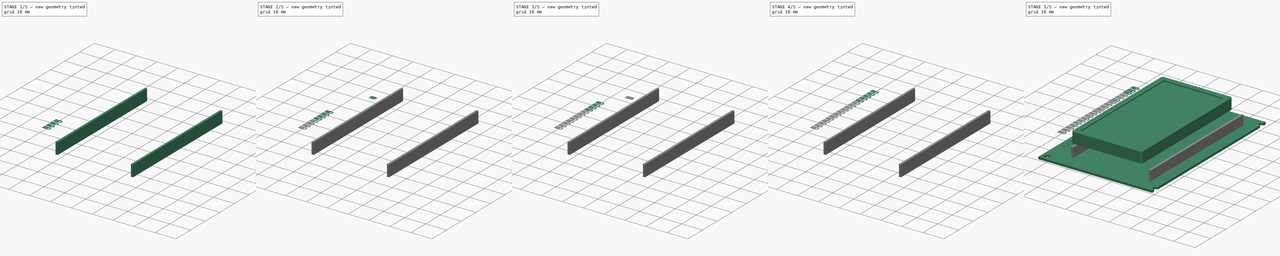
[diagram: build sequence overview — one tinted view per stage of 5, left to right]
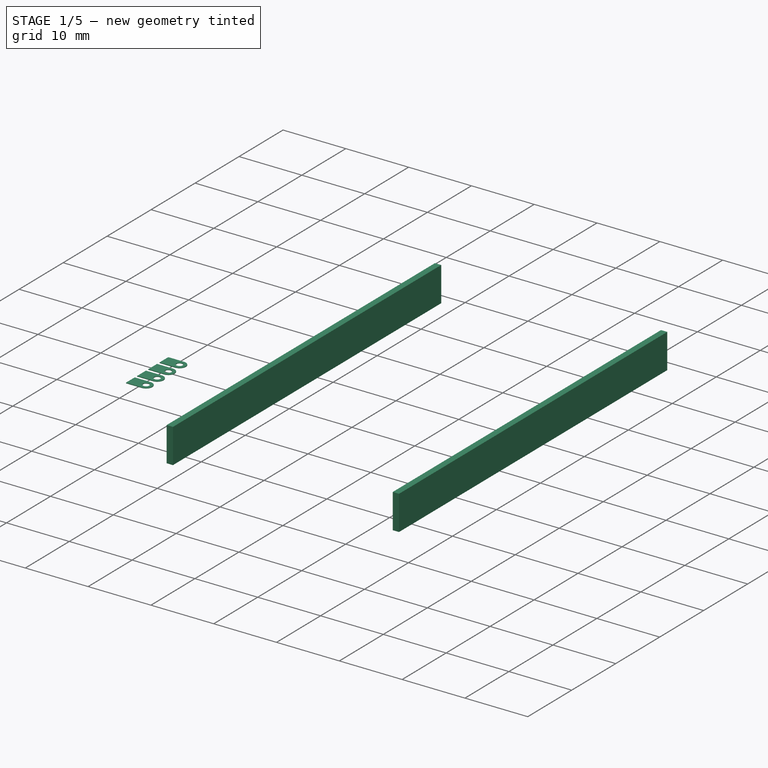
[diagram: stage 1 of 5 — iso view after this stage's code; geometry added in this stage tinted green]
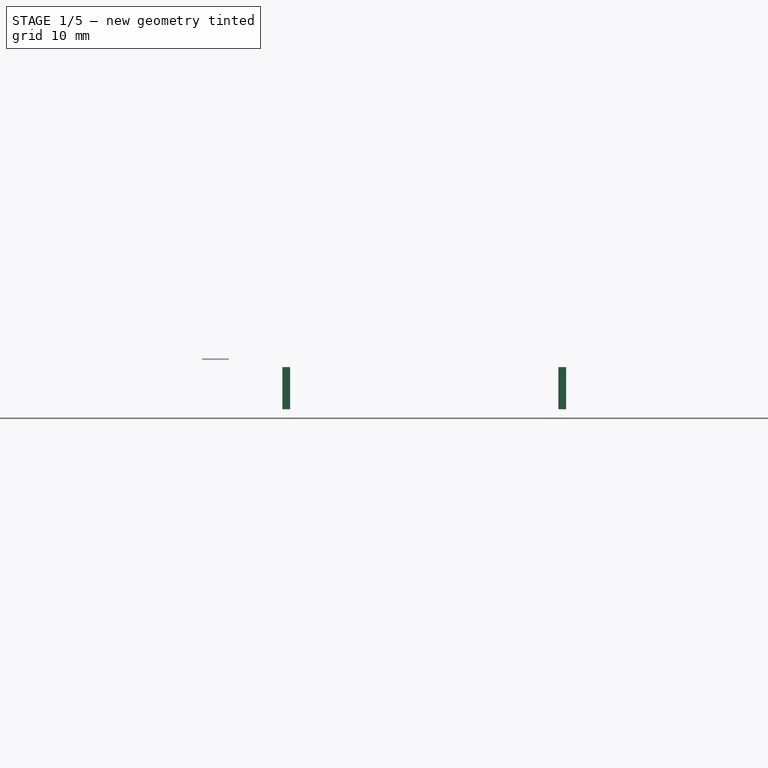
[diagram: stage 1 of 5 — front view after this stage's code; geometry added in this stage tinted green]
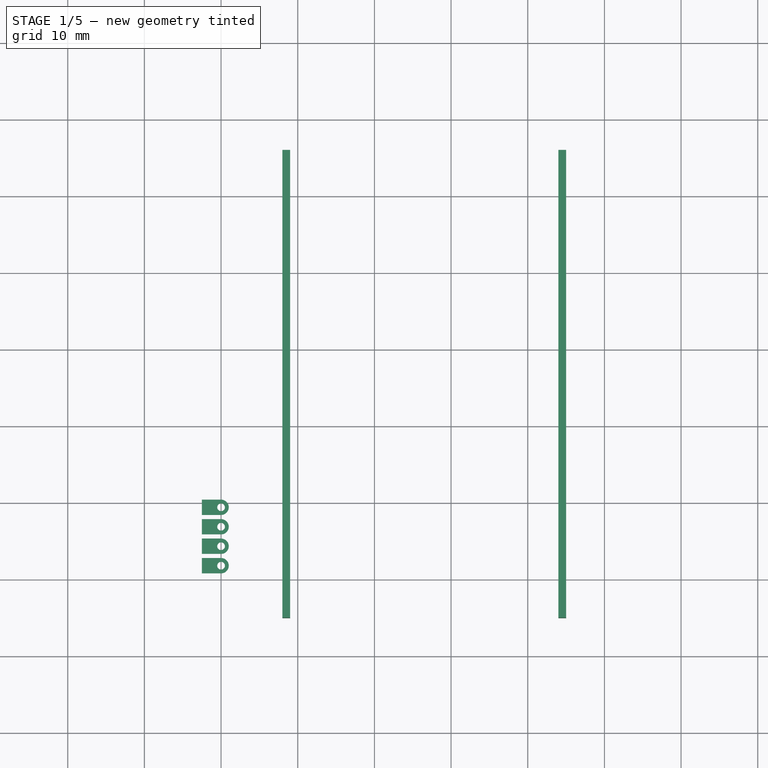
[diagram: stage 1 of 5 — top view after this stage's code; geometry added in this stage tinted green]
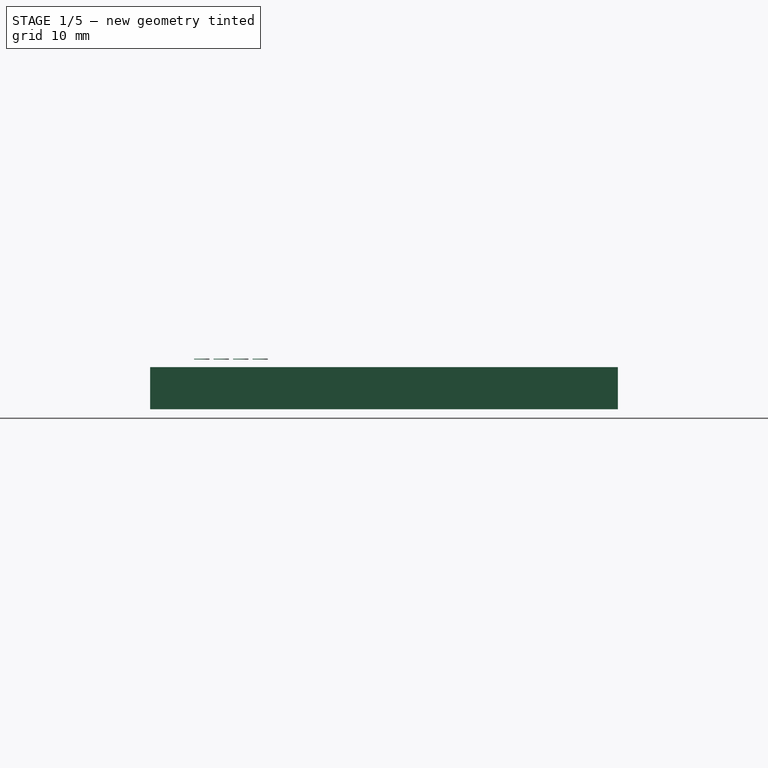
[diagram: stage 1 of 5 — right view after this stage's code; geometry added in this stage tinted green]
FCSTD DOCUMENT  (FreeCAD 0.17R11223 (Git))
Label: AG12864E_6
License: All rights reserved
LicenseURL: http://en.wikipedia.org/wiki/All_rights_reserved
objects: Part::Cylinder×60, Part::Cut×41, Part::Box×25, Part::Fuse×20, Part::Fillet×4, Sketcher::SketchObject×1, PartDesign::Pad×1, PartDesign::Body×1
note: 154 computed .brp shape members not serialized (recipe doc carries the construction recipe); baked Part::Feature solids carry a one-line shape summary decoded from their .brp

FEATURE [Part::Cylinder] Cylinder048
  Angle = 360
  AttacherType = Attacher::AttachEngine3D
  Height = 0.1
  Placement = pos=(0,0,1) rot=(0,0,1;0rad)
  Radius = 1
FEATURE [Part::Cylinder] Cylinder049
  Angle = 360
  AttacherType = Attacher::AttachEngine3D
  Height = 0.1
  Placement = pos=(0,0,1) rot=(0,0,1;0rad)
  Radius = 0.5
FEATURE [Part::Cut] Cut033
  Base = -> Cylinder048
  Tool = -> Cylinder049
FEATURE [Part::Box] Box019  label="Kub016"
  AttacherType = Attacher::AttachEngine3D
  Height = 0.1
  Length = 2.54
  Placement = pos=(-2.5,-1,1) rot=(0,0,1;0rad)
  Width = 2
FEATURE [Part::Cylinder] Cylinder050
  Angle = 360
  AttacherType = Attacher::AttachEngine3D
  Height = 0.1
  Placement = pos=(0,0,1) rot=(0,0,1;0rad)
  Radius = 0.5
FEATURE [Part::Cut] Cut034
  Base = -> Box019
  Tool = -> Cylinder050
FEATURE [Part::Fuse] Fusion016  label="Pad 017"
  Base = -> Cut033
  Placement = pos=(0,-40.64,5.5) rot=(0,0,1;0rad)
  Tool = -> Cut034
FEATURE [Part::Cylinder] Cylinder051
  Angle = 360
  AttacherType = Attacher::AttachEngine3D
  Height = 0.1
  Placement = pos=(0,0,1) rot=(0,0,1;0rad)
  Radius = 1
FEATURE [Part::Cylinder] Cylinder052
  Angle = 360
  AttacherType = Attacher::AttachEngine3D
  Height = 0.1
  Placement = pos=(0,0,1) rot=(0,0,1;0rad)
  Radius = 0.5
FEATURE [Part::Cut] Cut035
  Base = -> Cylinder051
  Tool = -> Cylinder052
FEATURE [Part::Box] Box020  label="Kub017"
  AttacherType = Attacher::AttachEngine3D
  Height = 0.1
  Length = 2.54
  Placement = pos=(-2.5,-1,1) rot=(0,0,1;0rad)
  Width = 2
FEATURE [Part::Cylinder] Cylinder053
  Angle = 360
  AttacherType = Attacher::AttachEngine3D
  Height = 0.1
  Placement = pos=(0,0,1) rot=(0,0,1;0rad)
  Radius = 0.5
FEATURE [Part::Cut] Cut036
  Base = -> Box020
  Tool = -> Cylinder053
FEATURE [Part::Fuse] Fusion017  label="Pad 018"
  Base = -> Cut035
  Placement = pos=(0,-43.18,5.5) rot=(0,0,1;0rad)
  Tool = -> Cut036
FEATURE [Part::Cylinder] Cylinder054
  Angle = 360
  AttacherType = Attacher::AttachEngine3D
  Height = 0.1
  Placement = pos=(0,0,1) rot=(0,0,1;0rad)
  Radius = 1
FEATURE [Part::Cylinder] Cylinder055
  Angle = 360
  AttacherType = Attacher::AttachEngine3D
  Height = 0.1
  Placement = pos=(0,0,1) rot=(0,0,1;0rad)
  Radius = 0.5
FEATURE [Part::Cut] Cut037
  Base = -> Cylinder054
  Tool = -> Cylinder055
FEATURE [Part::Box] Box021  label="Kub018"
  AttacherType = Attacher::AttachEngine3D
  Height = 0.1
  Length = 2.54
  Placement = pos=(-2.5,-1,1) rot=(0,0,1;0rad)
  Width = 2
FEATURE [Part::Cylinder] Cylinder056
  Angle = 360
  AttacherType = Attacher::AttachEngine3D
  Height = 0.1
  Placement = pos=(0,0,1) rot=(0,0,1;0rad)
  Radius = 0.5
FEATURE [Part::Cut] Cut038
  Base = -> Box021
  Tool = -> Cylinder056
FEATURE [Part::Fuse] Fusion018  label="Pad 019"
  Base = -> Cut037
  Placement = pos=(0,-45.72,5.5) rot=(0,0,1;0rad)
  Tool = -> Cut038
FEATURE [Part::Cylinder] Cylinder057
  Angle = 360
  AttacherType = Attacher::AttachEngine3D
  Height = 0.1
  Placement = pos=(0,0,1) rot=(0,0,1;0rad)
  Radius = 1
FEATURE [Part::Cylinder] Cylinder058
  Angle = 360
  AttacherType = Attacher::AttachEngine3D
  Height = 0.1
  Placement = pos=(0,0,1) rot=(0,0,1;0rad)
  Radius = 0.5
FEATURE [Part::Cut] Cut039
  Base = -> Cylinder057
  Tool = -> Cylinder058
FEATURE [Part::Box] Box022  label="Kub019"
  AttacherType = Attacher::AttachEngine3D
  Height = 0.1
  Length = 2.54
  Placement = pos=(-2.5,-1,1) rot=(0,0,1;0rad)
  Width = 2
FEATURE [Part::Cylinder] Cylinder059
  Angle = 360
  AttacherType = Attacher::AttachEngine3D
  Height = 0.1
  Placement = pos=(0,0,1) rot=(0,0,1;0rad)
  Radius = 0.5
FEATURE [Part::Cut] Cut040
  Base = -> Box022
  Tool = -> Cylinder059
FEATURE [Part::Fuse] Fusion019  label="Pad 020"
  Base = -> Cut039
  Placement = pos=(0,-48.26,5.5) rot=(0,0,1;0rad)
  Tool = -> Cut040
FEATURE [Part::Box] Box023  label="Glider 001"
  AttacherType = Attacher::AttachEngine3D
  Height = 5.5
  Length = 1
  Placement = pos=(8,-55,0) rot=(0,0,1;0rad)
  Width = 61
FEATURE [Part::Box] Box024  label="Glider 002"
  AttacherType = Attacher::AttachEngine3D
  Height = 5.5
  Length = 1
  Placement = pos=(44,-55,0) rot=(0,0,1;0rad)
  Width = 61
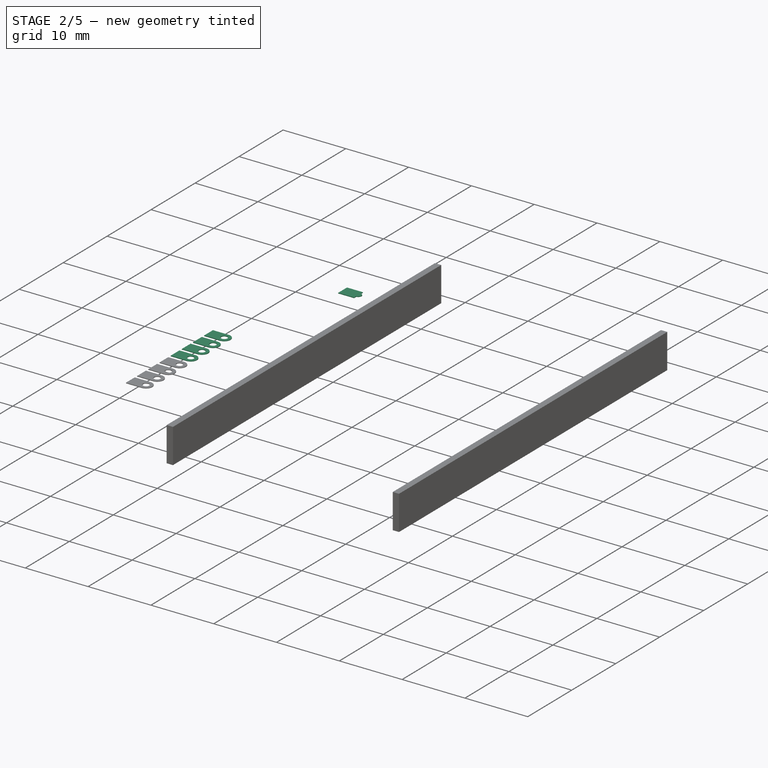
[diagram: stage 2 of 5 — iso view after this stage's code; geometry added in this stage tinted green]
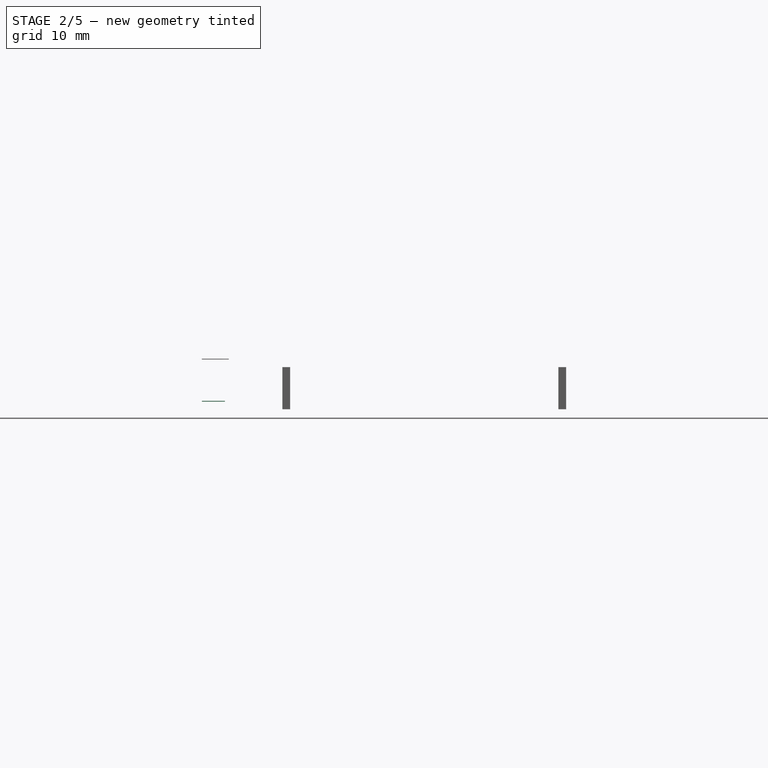
[diagram: stage 2 of 5 — front view after this stage's code; geometry added in this stage tinted green]
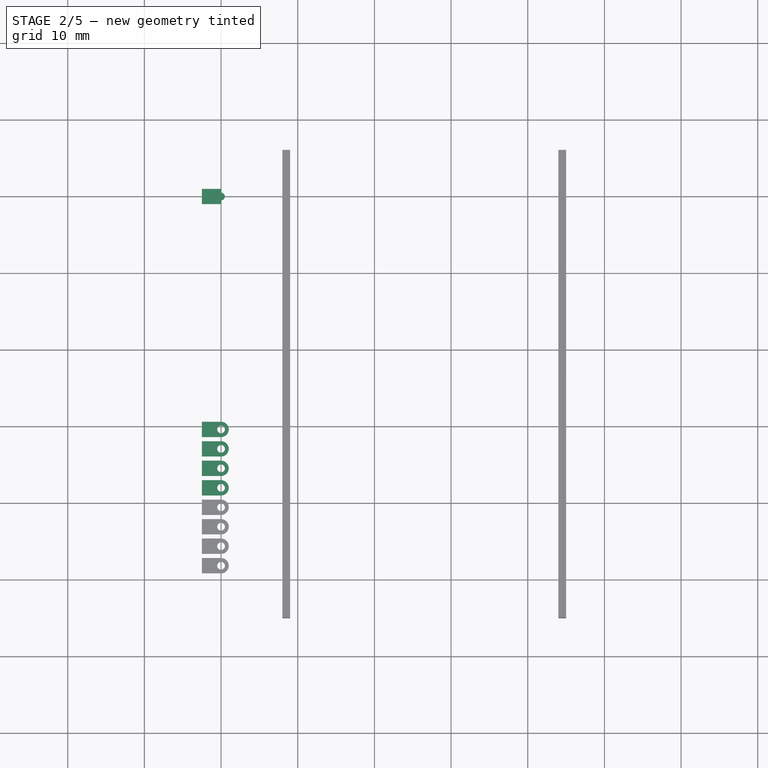
[diagram: stage 2 of 5 — top view after this stage's code; geometry added in this stage tinted green]
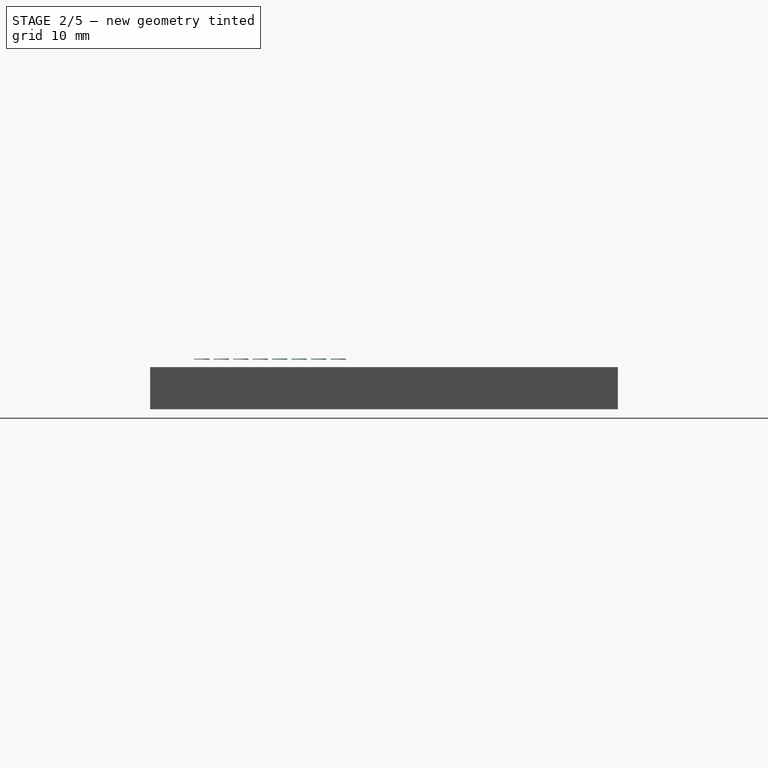
[diagram: stage 2 of 5 — right view after this stage's code; geometry added in this stage tinted green]
FEATURE [Part::Box] Box014  label="Kub011"
  AttacherType = Attacher::AttachEngine3D
  Height = 0.1
  Length = 2.54
  Placement = pos=(-2.5,-1,1) rot=(0,0,1;0rad)
  Width = 2
FEATURE [Part::Cylinder] Cylinder035
  Angle = 360
  AttacherType = Attacher::AttachEngine3D
  Height = 0.1
  Placement = pos=(0,0,1) rot=(0,0,1;0rad)
  Radius = 0.5
FEATURE [Part::Cylinder] Cylinder036
  Angle = 360
  AttacherType = Attacher::AttachEngine3D
  Height = 0.1
  Placement = pos=(0,0,1) rot=(0,0,1;0rad)
  Radius = 1
FEATURE [Part::Cylinder] Cylinder037
  Angle = 360
  AttacherType = Attacher::AttachEngine3D
  Height = 0.1
  Placement = pos=(0,0,1) rot=(0,0,1;0rad)
  Radius = 0.5
FEATURE [Part::Cut] Cut025
  Base = -> Cylinder036
  Tool = -> Cylinder037
FEATURE [Part::Box] Box015  label="Kub012"
  AttacherType = Attacher::AttachEngine3D
  Height = 0.1
  Length = 2.54
  Placement = pos=(-2.5,-1,1) rot=(0,0,1;0rad)
  Width = 2
FEATURE [Part::Cylinder] Cylinder038
  Angle = 360
  AttacherType = Attacher::AttachEngine3D
  Height = 0.1
  Placement = pos=(0,0,1) rot=(0,0,1;0rad)
  Radius = 0.5
FEATURE [Part::Cut] Cut026
  Base = -> Box015
  Tool = -> Cylinder038
FEATURE [Part::Fuse] Fusion012  label="Pad 013"
  Base = -> Cut025
  Placement = pos=(0,-30.48,5.5) rot=(0,0,1;0rad)
  Tool = -> Cut026
FEATURE [Part::Cylinder] Cylinder039
  Angle = 360
  AttacherType = Attacher::AttachEngine3D
  Height = 0.1
  Placement = pos=(0,0,1) rot=(0,0,1;0rad)
  Radius = 1
FEATURE [Part::Cylinder] Cylinder040
  Angle = 360
  AttacherType = Attacher::AttachEngine3D
  Height = 0.1
  Placement = pos=(0,0,1) rot=(0,0,1;0rad)
  Radius = 0.5
FEATURE [Part::Cut] Cut027
  Base = -> Cylinder039
  Tool = -> Cylinder040
FEATURE [Part::Box] Box016  label="Kub013"
  AttacherType = Attacher::AttachEngine3D
  Height = 0.1
  Length = 2.54
  Placement = pos=(-2.5,-1,1) rot=(0,0,1;0rad)
  Width = 2
FEATURE [Part::Cylinder] Cylinder041
  Angle = 360
  AttacherType = Attacher::AttachEngine3D
  Height = 0.1
  Placement = pos=(0,0,1) rot=(0,0,1;0rad)
  Radius = 0.5
FEATURE [Part::Cut] Cut028
  Base = -> Box016
  Tool = -> Cylinder041
FEATURE [Part::Fuse] Fusion013  label="Pad 014"
  Base = -> Cut027
  Placement = pos=(0,-33.02,5.5) rot=(0,0,1;0rad)
  Tool = -> Cut028
FEATURE [Part::Cylinder] Cylinder042
  Angle = 360
  AttacherType = Attacher::AttachEngine3D
  Height = 0.1
  Placement = pos=(0,0,1) rot=(0,0,1;0rad)
  Radius = 1
FEATURE [Part::Cylinder] Cylinder043
  Angle = 360
  AttacherType = Attacher::AttachEngine3D
  Height = 0.1
  Placement = pos=(0,0,1) rot=(0,0,1;0rad)
  Radius = 0.5
FEATURE [Part::Cut] Cut029
  Base = -> Cylinder042
  Tool = -> Cylinder043
FEATURE [Part::Box] Box017  label="Kub014"
  AttacherType = Attacher::AttachEngine3D
  Height = 0.1
  Length = 2.54
  Placement = pos=(-2.5,-1,1) rot=(0,0,1;0rad)
  Width = 2
FEATURE [Part::Cylinder] Cylinder044
  Angle = 360
  AttacherType = Attacher::AttachEngine3D
  Height = 0.1
  Placement = pos=(0,0,1) rot=(0,0,1;0rad)
  Radius = 0.5
FEATURE [Part::Cut] Cut030
  Base = -> Box017
  Tool = -> Cylinder044
FEATURE [Part::Fuse] Fusion014  label="Pad 015"
  Base = -> Cut029
  Placement = pos=(0,-35.56,5.5) rot=(0,0,1;0rad)
  Tool = -> Cut030
FEATURE [Part::Cylinder] Cylinder045
  Angle = 360
  AttacherType = Attacher::AttachEngine3D
  Height = 0.1
  Placement = pos=(0,0,1) rot=(0,0,1;0rad)
  Radius = 1
FEATURE [Part::Cylinder] Cylinder046
  Angle = 360
  AttacherType = Attacher::AttachEngine3D
  Height = 0.1
  Placement = pos=(0,0,1) rot=(0,0,1;0rad)
  Radius = 0.5
FEATURE [Part::Cut] Cut031
  Base = -> Cylinder045
  Tool = -> Cylinder046
FEATURE [Part::Box] Box018  label="Kub015"
  AttacherType = Attacher::AttachEngine3D
  Height = 0.1
  Length = 2.54
  Placement = pos=(-2.5,-1,1) rot=(0,0,1;0rad)
  Width = 2
FEATURE [Part::Cylinder] Cylinder047
  Angle = 360
  AttacherType = Attacher::AttachEngine3D
  Height = 0.1
  Placement = pos=(0,0,1) rot=(0,0,1;0rad)
  Radius = 0.5
FEATURE [Part::Cut] Cut032
  Base = -> Box018
  Tool = -> Cylinder047
FEATURE [Part::Fuse] Fusion015  label="Pad 016"
  Base = -> Cut031
  Placement = pos=(0,-38.1,5.5) rot=(0,0,1;0rad)
  Tool = -> Cut032
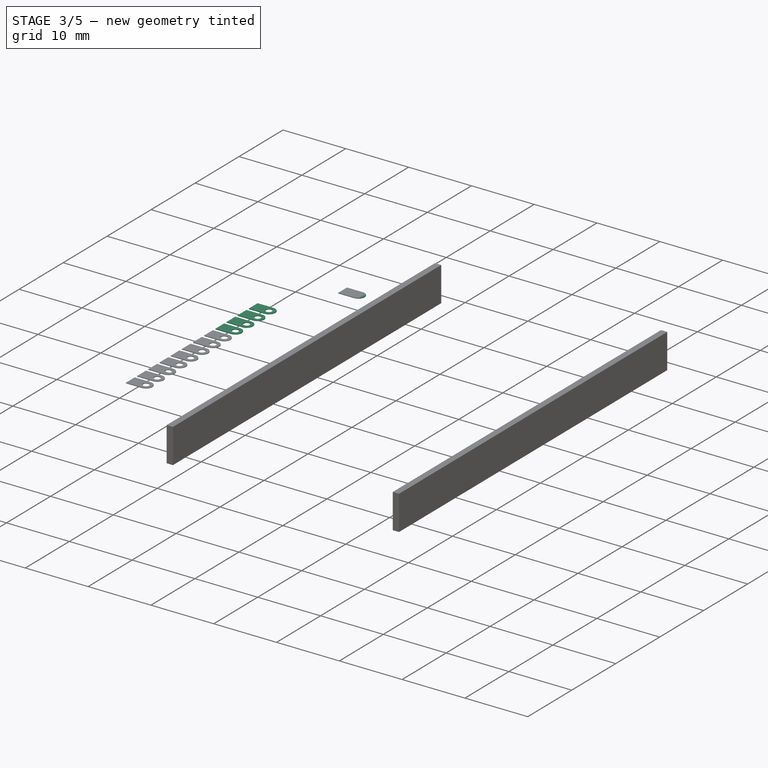
[diagram: stage 3 of 5 — iso view after this stage's code; geometry added in this stage tinted green]
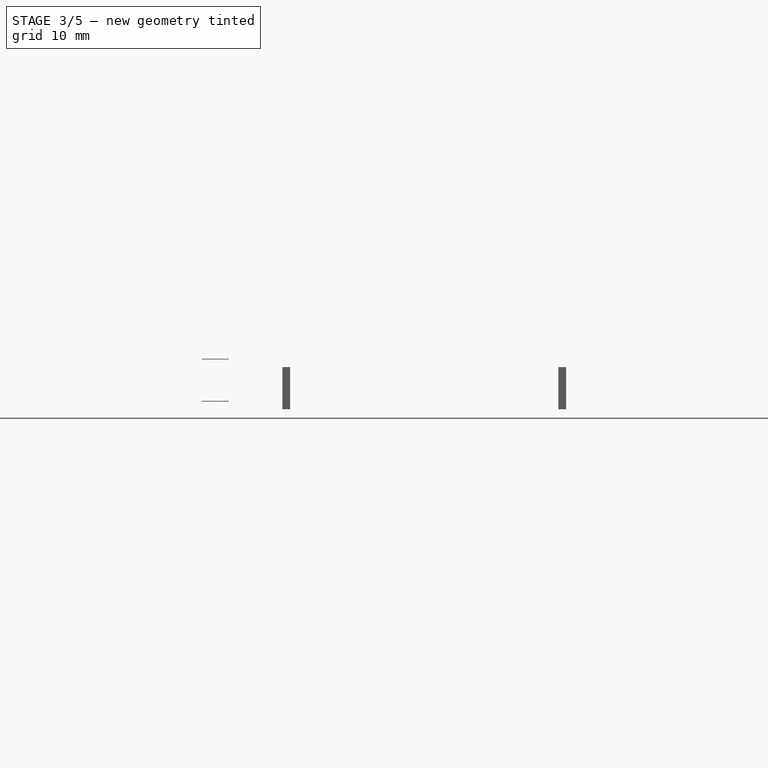
[diagram: stage 3 of 5 — front view after this stage's code; geometry added in this stage tinted green]
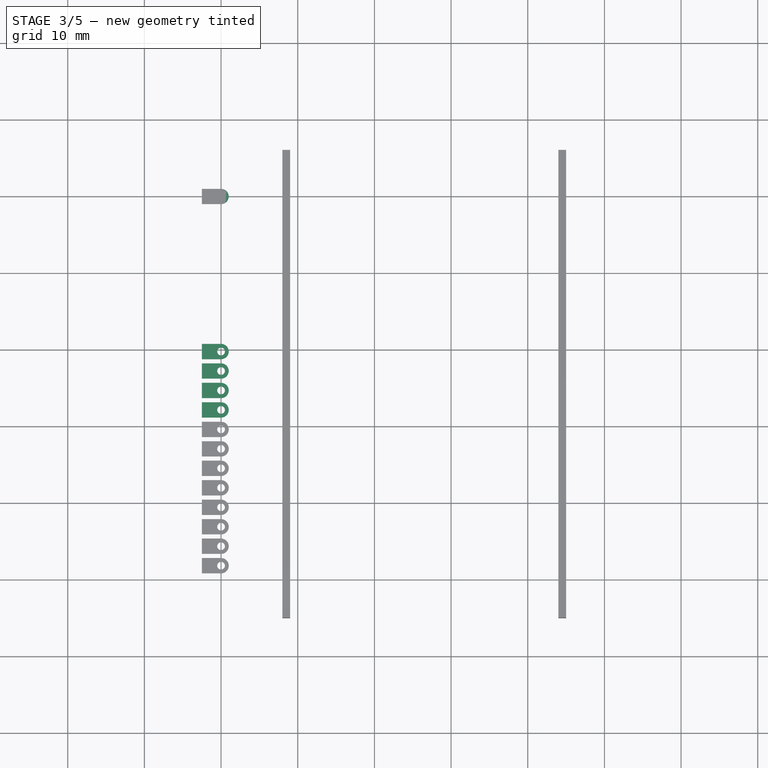
[diagram: stage 3 of 5 — top view after this stage's code; geometry added in this stage tinted green]
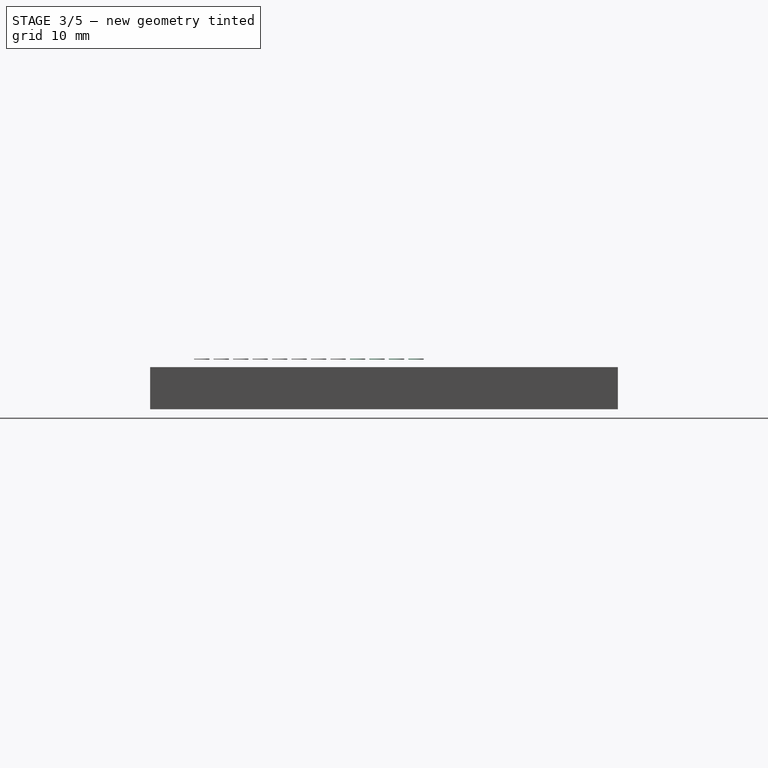
[diagram: stage 3 of 5 — right view after this stage's code; geometry added in this stage tinted green]
FEATURE [Part::Cylinder] Cylinder021
  Angle = 360
  AttacherType = Attacher::AttachEngine3D
  Height = 0.1
  Placement = pos=(0,0,1) rot=(0,0,1;0rad)
  Radius = 1
FEATURE [Part::Cylinder] Cylinder022
  Angle = 360
  AttacherType = Attacher::AttachEngine3D
  Height = 0.1
  Placement = pos=(0,0,1) rot=(0,0,1;0rad)
  Radius = 0.5
FEATURE [Part::Box] Box010  label="Kub007"
  AttacherType = Attacher::AttachEngine3D
  Height = 0.1
  Length = 2.54
  Placement = pos=(-2.5,-1,1) rot=(0,0,1;0rad)
  Width = 2
FEATURE [Part::Cylinder] Cylinder023
  Angle = 360
  AttacherType = Attacher::AttachEngine3D
  Height = 0.1
  Placement = pos=(0,0,1) rot=(0,0,1;0rad)
  Radius = 0.5
FEATURE [Part::Cut] Cut016
  Base = -> Box010
  Tool = -> Cylinder023
FEATURE [Part::Cylinder] Cylinder024
  Angle = 360
  AttacherType = Attacher::AttachEngine3D
  Height = 0.1
  Placement = pos=(0,0,1) rot=(0,0,1;0rad)
  Radius = 1
FEATURE [Part::Cylinder] Cylinder025
  Angle = 360
  AttacherType = Attacher::AttachEngine3D
  Height = 0.1
  Placement = pos=(0,0,1) rot=(0,0,1;0rad)
  Radius = 0.5
FEATURE [Part::Cut] Cut017
  Base = -> Cylinder024
  Tool = -> Cylinder025
FEATURE [Part::Box] Box011  label="Kub008"
  AttacherType = Attacher::AttachEngine3D
  Height = 0.1
  Length = 2.54
  Placement = pos=(-2.5,-1,1) rot=(0,0,1;0rad)
  Width = 2
FEATURE [Part::Cylinder] Cylinder026
  Angle = 360
  AttacherType = Attacher::AttachEngine3D
  Height = 0.1
  Placement = pos=(0,0,1) rot=(0,0,1;0rad)
  Radius = 0.5
FEATURE [Part::Cut] Cut018
  Base = -> Box011
  Tool = -> Cylinder026
FEATURE [Part::Fuse] Fusion008  label="Pad 009"
  Base = -> Cut017
  Placement = pos=(0,-20.32,5.5) rot=(0,0,1;0rad)
  Tool = -> Cut018
FEATURE [Part::Cylinder] Cylinder027
  Angle = 360
  AttacherType = Attacher::AttachEngine3D
  Height = 0.1
  Placement = pos=(0,0,1) rot=(0,0,1;0rad)
  Radius = 1
FEATURE [Part::Cylinder] Cylinder028
  Angle = 360
  AttacherType = Attacher::AttachEngine3D
  Height = 0.1
  Placement = pos=(0,0,1) rot=(0,0,1;0rad)
  Radius = 0.5
FEATURE [Part::Cut] Cut019
  Base = -> Cylinder027
  Tool = -> Cylinder028
FEATURE [Part::Box] Box012  label="Kub009"
  AttacherType = Attacher::AttachEngine3D
  Height = 0.1
  Length = 2.54
  Placement = pos=(-2.5,-1,1) rot=(0,0,1;0rad)
  Width = 2
FEATURE [Part::Cylinder] Cylinder029
  Angle = 360
  AttacherType = Attacher::AttachEngine3D
  Height = 0.1
  Placement = pos=(0,0,1) rot=(0,0,1;0rad)
  Radius = 0.5
FEATURE [Part::Cut] Cut020
  Base = -> Box012
  Tool = -> Cylinder029
FEATURE [Part::Fuse] Fusion009  label="Pad 010"
  Base = -> Cut019
  Placement = pos=(0,-22.86,5.5) rot=(0,0,1;0rad)
  Tool = -> Cut020
FEATURE [Part::Cylinder] Cylinder030
  Angle = 360
  AttacherType = Attacher::AttachEngine3D
  Height = 0.1
  Placement = pos=(0,0,1) rot=(0,0,1;0rad)
  Radius = 1
FEATURE [Part::Cylinder] Cylinder031
  Angle = 360
  AttacherType = Attacher::AttachEngine3D
  Height = 0.1
  Placement = pos=(0,0,1) rot=(0,0,1;0rad)
  Radius = 0.5
FEATURE [Part::Cut] Cut021
  Base = -> Cylinder030
  Tool = -> Cylinder031
FEATURE [Part::Box] Box013  label="Kub010"
  AttacherType = Attacher::AttachEngine3D
  Height = 0.1
  Length = 2.54
  Placement = pos=(-2.5,-1,1) rot=(0,0,1;0rad)
  Width = 2
FEATURE [Part::Cylinder] Cylinder032
  Angle = 360
  AttacherType = Attacher::AttachEngine3D
  Height = 0.1
  Placement = pos=(0,0,1) rot=(0,0,1;0rad)
  Radius = 0.5
FEATURE [Part::Cut] Cut022
  Base = -> Box013
  Tool = -> Cylinder032
FEATURE [Part::Fuse] Fusion010  label="Pad 011"
  Base = -> Cut021
  Placement = pos=(0,-25.4,5.5) rot=(0,0,1;0rad)
  Tool = -> Cut022
FEATURE [Part::Cylinder] Cylinder033
  Angle = 360
  AttacherType = Attacher::AttachEngine3D
  Height = 0.1
  Placement = pos=(0,0,1) rot=(0,0,1;0rad)
  Radius = 1
FEATURE [Part::Cylinder] Cylinder034
  Angle = 360
  AttacherType = Attacher::AttachEngine3D
  Height = 0.1
  Placement = pos=(0,0,1) rot=(0,0,1;0rad)
  Radius = 0.5
FEATURE [Part::Cut] Cut023
  Base = -> Cylinder033
  Tool = -> Cylinder034
FEATURE [Part::Cut] Cut024
  Base = -> Box014
  Tool = -> Cylinder035
FEATURE [Part::Fuse] Fusion011  label="Pad 012"
  Base = -> Cut023
  Placement = pos=(0,-27.94,5.5) rot=(0,0,1;0rad)
  Tool = -> Cut024
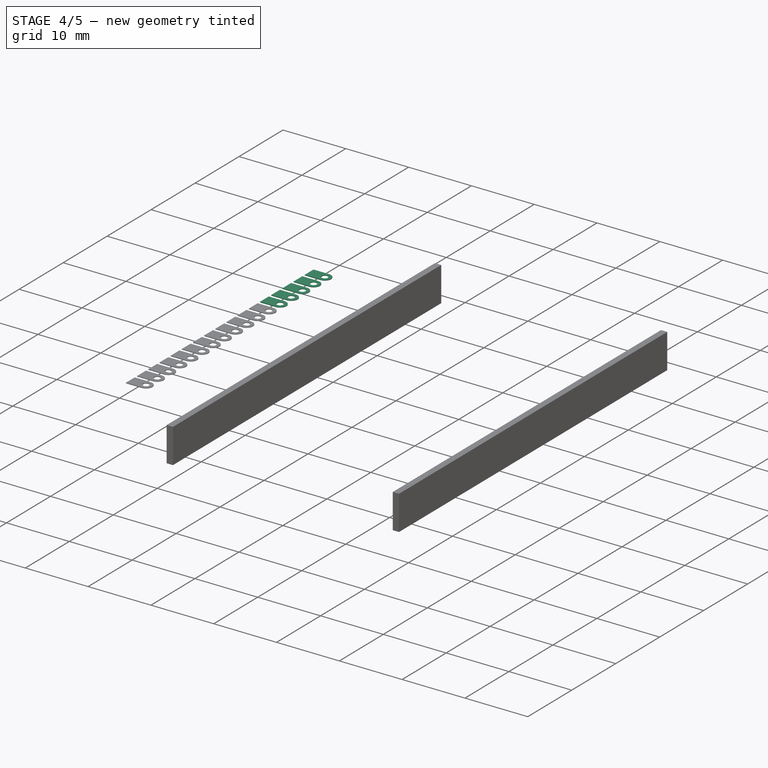
[diagram: stage 4 of 5 — iso view after this stage's code; geometry added in this stage tinted green]
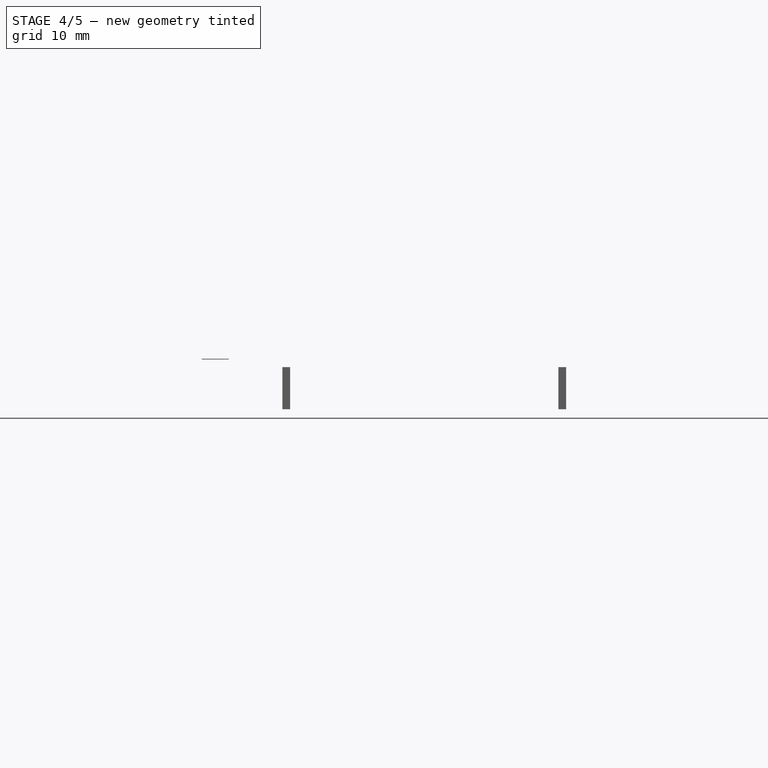
[diagram: stage 4 of 5 — front view after this stage's code; geometry added in this stage tinted green]
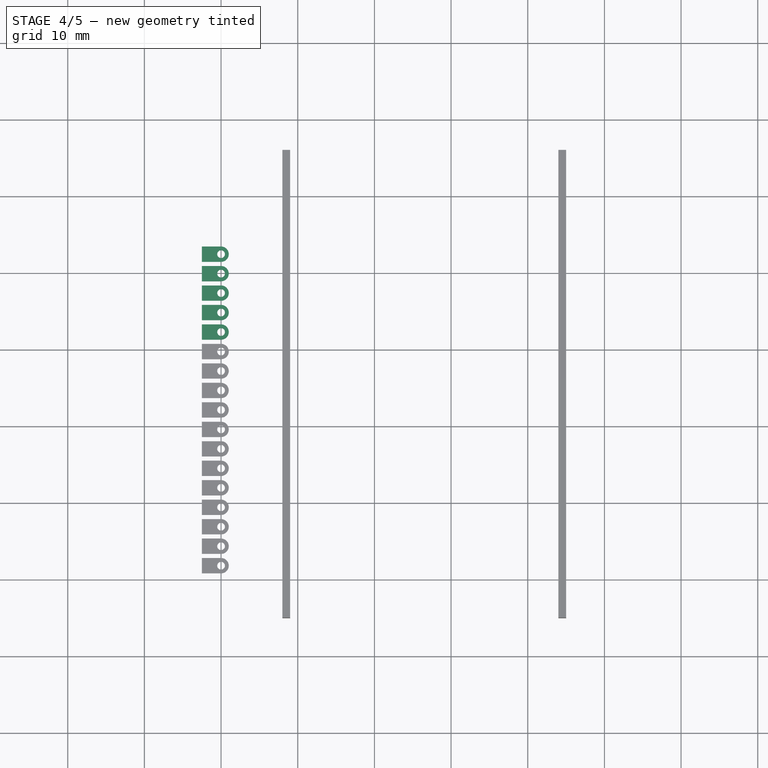
[diagram: stage 4 of 5 — top view after this stage's code; geometry added in this stage tinted green]
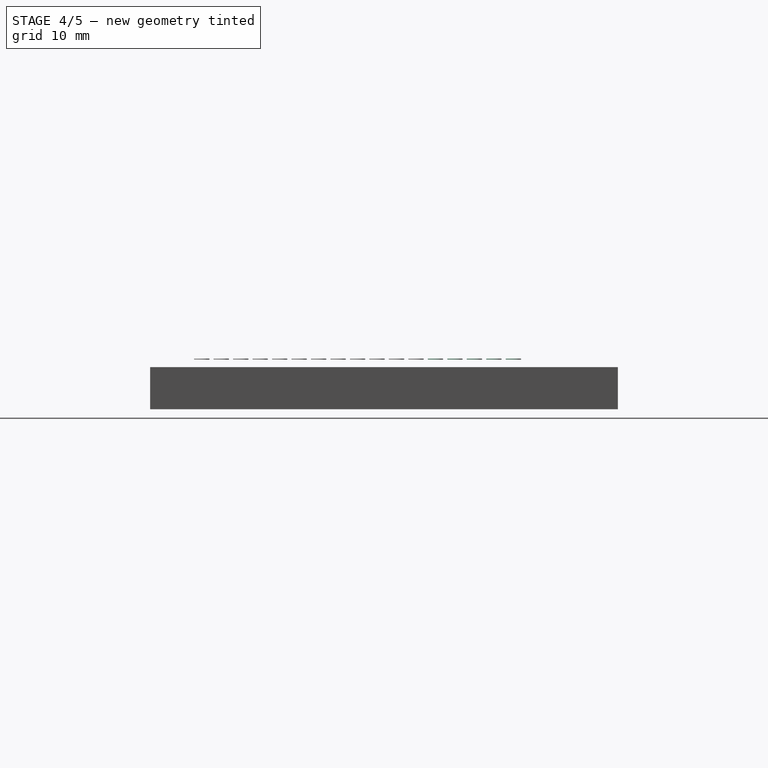
[diagram: stage 4 of 5 — right view after this stage's code; geometry added in this stage tinted green]
FEATURE [Part::Cylinder] Cylinder009
  Angle = 360
  AttacherType = Attacher::AttachEngine3D
  Height = 0.1
  Placement = pos=(0,0,1) rot=(0,0,1;0rad)
  Radius = 1
FEATURE [Part::Cylinder] Cylinder010
  Angle = 360
  AttacherType = Attacher::AttachEngine3D
  Height = 0.1
  Placement = pos=(0,0,1) rot=(0,0,1;0rad)
  Radius = 0.5
FEATURE [Part::Cut] Cut007
  Base = -> Cylinder009
  Tool = -> Cylinder010
FEATURE [Part::Box] Box006  label="Kub003"
  AttacherType = Attacher::AttachEngine3D
  Height = 0.1
  Length = 2.54
  Placement = pos=(-2.5,-1,1) rot=(0,0,1;0rad)
  Width = 2
FEATURE [Part::Cylinder] Cylinder011
  Angle = 360
  AttacherType = Attacher::AttachEngine3D
  Height = 0.1
  Placement = pos=(0,0,1) rot=(0,0,1;0rad)
  Radius = 0.5
FEATURE [Part::Cut] Cut008
  Base = -> Box006
  Tool = -> Cylinder011
FEATURE [Part::Fuse] Fusion003  label="Pad 004"
  Base = -> Cut007
  Placement = pos=(0,-7.62,5.5) rot=(0,0,1;0rad)
  Tool = -> Cut008
FEATURE [Part::Cylinder] Cylinder012
  Angle = 360
  AttacherType = Attacher::AttachEngine3D
  Height = 0.1
  Placement = pos=(0,0,1) rot=(0,0,1;0rad)
  Radius = 1
FEATURE [Part::Cylinder] Cylinder013
  Angle = 360
  AttacherType = Attacher::AttachEngine3D
  Height = 0.1
  Placement = pos=(0,0,1) rot=(0,0,1;0rad)
  Radius = 0.5
FEATURE [Part::Cut] Cut009
  Base = -> Cylinder012
  Tool = -> Cylinder013
FEATURE [Part::Box] Box007  label="Kub004"
  AttacherType = Attacher::AttachEngine3D
  Height = 0.1
  Length = 2.54
  Placement = pos=(-2.5,-1,1) rot=(0,0,1;0rad)
  Width = 2
FEATURE [Part::Cylinder] Cylinder014
  Angle = 360
  AttacherType = Attacher::AttachEngine3D
  Height = 0.1
  Placement = pos=(0,0,1) rot=(0,0,1;0rad)
  Radius = 0.5
FEATURE [Part::Cut] Cut010
  Base = -> Box007
  Tool = -> Cylinder014
FEATURE [Part::Fuse] Fusion004  label="Pad 005"
  Base = -> Cut009
  Placement = pos=(0,-10.16,5.5) rot=(0,0,1;0rad)
  Tool = -> Cut010
FEATURE [Part::Cylinder] Cylinder015
  Angle = 360
  AttacherType = Attacher::AttachEngine3D
  Height = 0.1
  Placement = pos=(0,0,1) rot=(0,0,1;0rad)
  Radius = 1
FEATURE [Part::Cylinder] Cylinder016
  Angle = 360
  AttacherType = Attacher::AttachEngine3D
  Height = 0.1
  Placement = pos=(0,0,1) rot=(0,0,1;0rad)
  Radius = 0.5
FEATURE [Part::Cut] Cut011
  Base = -> Cylinder015
  Tool = -> Cylinder016
FEATURE [Part::Box] Box008  label="Kub005"
  AttacherType = Attacher::AttachEngine3D
  Height = 0.1
  Length = 2.54
  Placement = pos=(-2.5,-1,1) rot=(0,0,1;0rad)
  Width = 2
FEATURE [Part::Cylinder] Cylinder017
  Angle = 360
  AttacherType = Attacher::AttachEngine3D
  Height = 0.1
  Placement = pos=(0,0,1) rot=(0,0,1;0rad)
  Radius = 0.5
FEATURE [Part::Cut] Cut012
  Base = -> Box008
  Tool = -> Cylinder017
FEATURE [Part::Fuse] Fusion005  label="Pad 006"
  Base = -> Cut011
  Placement = pos=(0,-12.7,5.5) rot=(0,0,1;0rad)
  Tool = -> Cut012
FEATURE [Part::Cylinder] Cylinder018
  Angle = 360
  AttacherType = Attacher::AttachEngine3D
  Height = 0.1
  Placement = pos=(0,0,1) rot=(0,0,1;0rad)
  Radius = 1
FEATURE [Part::Cylinder] Cylinder019
  Angle = 360
  AttacherType = Attacher::AttachEngine3D
  Height = 0.1
  Placement = pos=(0,0,1) rot=(0,0,1;0rad)
  Radius = 0.5
FEATURE [Part::Cut] Cut013
  Base = -> Cylinder018
  Tool = -> Cylinder019
FEATURE [Part::Box] Box009  label="Kub006"
  AttacherType = Attacher::AttachEngine3D
  Height = 0.1
  Length = 2.54
  Placement = pos=(-2.5,-1,1) rot=(0,0,1;0rad)
  Width = 2
FEATURE [Part::Cylinder] Cylinder020
  Angle = 360
  AttacherType = Attacher::AttachEngine3D
  Height = 0.1
  Placement = pos=(0,0,1) rot=(0,0,1;0rad)
  Radius = 0.5
FEATURE [Part::Cut] Cut014
  Base = -> Box009
  Tool = -> Cylinder020
FEATURE [Part::Fuse] Fusion006  label="Pad 007"
  Base = -> Cut013
  Placement = pos=(0,-15.24,5.5) rot=(0,0,1;0rad)
  Tool = -> Cut014
FEATURE [Part::Cut] Cut015
  Base = -> Cylinder021
  Tool = -> Cylinder022
FEATURE [Part::Fuse] Fusion007  label="Pad 008"
  Base = -> Cut015
  Placement = pos=(0,-17.78,5.5) rot=(0,0,1;0rad)
  Tool = -> Cut016
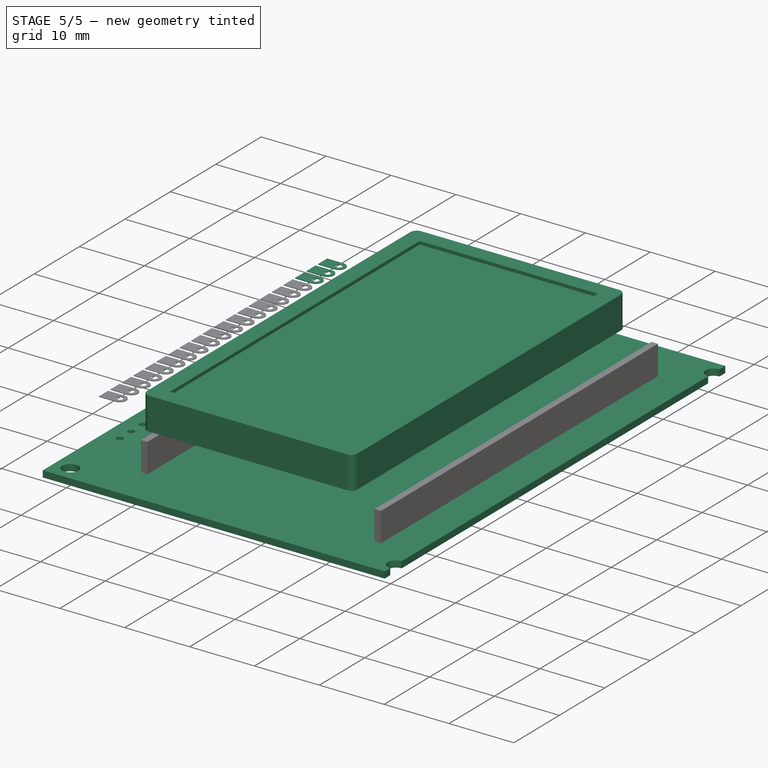
[diagram: stage 5 of 5 — iso view after this stage's code; geometry added in this stage tinted green]
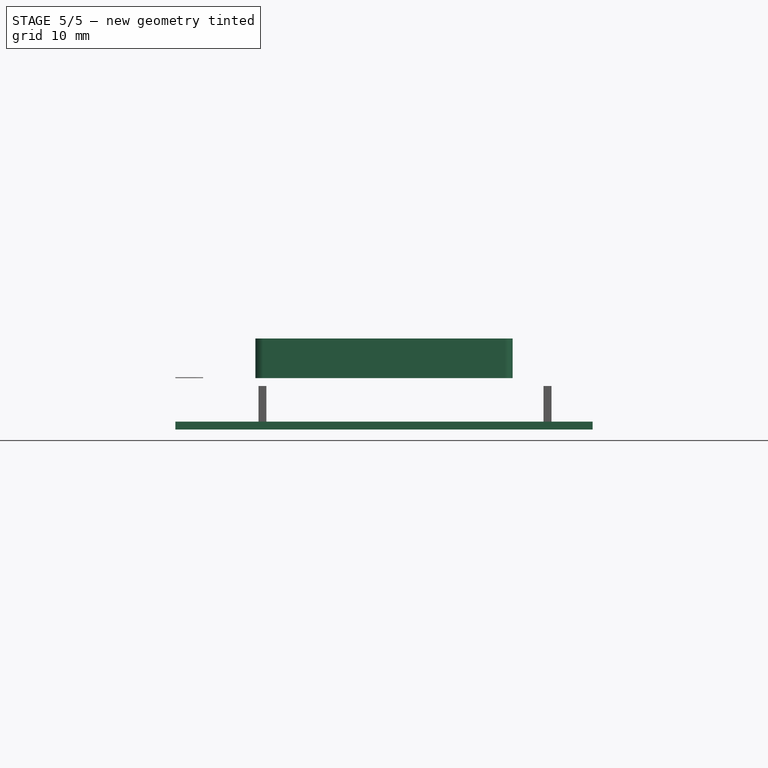
[diagram: stage 5 of 5 — front view after this stage's code; geometry added in this stage tinted green]
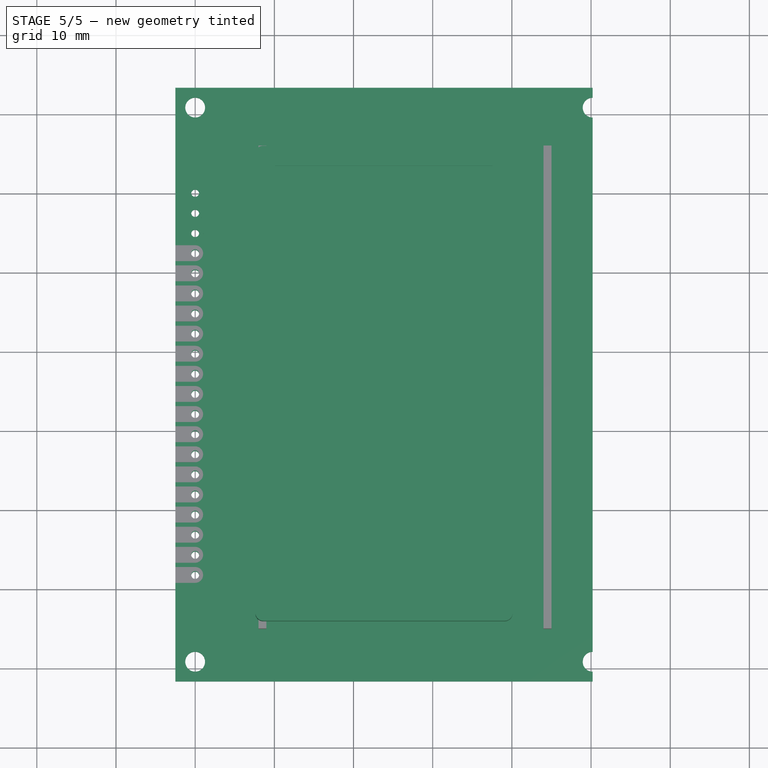
[diagram: stage 5 of 5 — top view after this stage's code; geometry added in this stage tinted green]
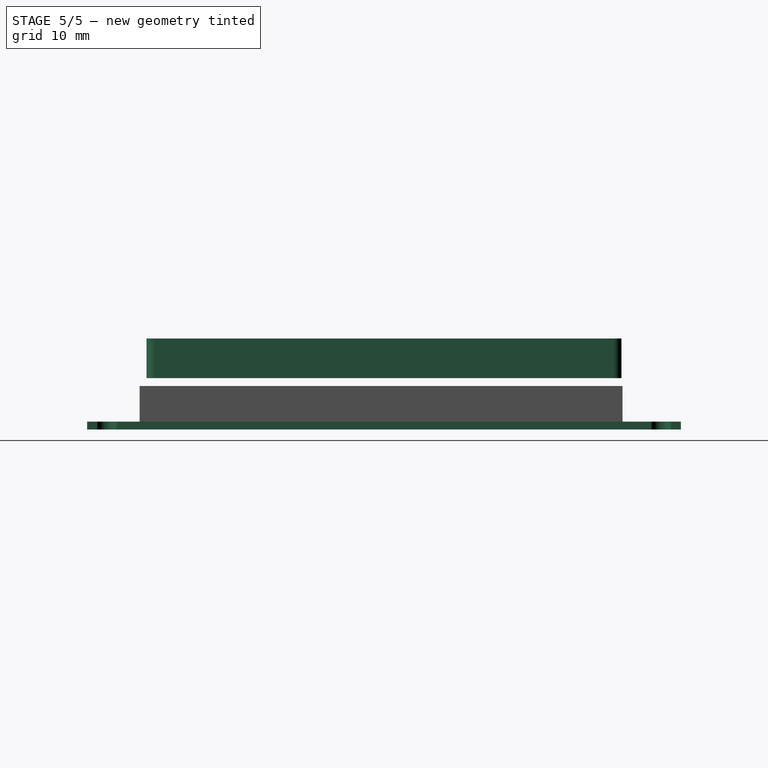
[diagram: stage 5 of 5 — right view after this stage's code; geometry added in this stage tinted green]
FEATURE [Sketcher::SketchObject] Sketch
  MapMode = 5
  Support = -> [XY_Plane]
  sketch-geometry (30):
    g0: LineSegment StartX=-2.5 StartY=13.37 StartZ=0 EndX=50.2 EndY=13.37 EndZ=0
    g1: LineSegment StartX=-2.5 StartY=13.37 StartZ=0 EndX=-2.5 EndY=-61.63 EndZ=0
    g2: LineSegment StartX=-2.5 StartY=-61.63 StartZ=0 EndX=50.2 EndY=-61.63 EndZ=0
    g3: LineSegment StartX=50.2 StartY=13.37 StartZ=0 EndX=50.2 EndY=12.12 EndZ=0
    g4: ArcOfCircle CenterX=50.2 CenterY=10.87 CenterZ=0 NormalX=0 NormalY=0 NormalZ=1 Radius=1.25 StartAngle=1.5708 EndAngle=4.71239
    g5: LineSegment StartX=50.2 StartY=-61.63 StartZ=0 EndX=50.2 EndY=-60.38 EndZ=0
    g6: ArcOfCircle CenterX=50.2 CenterY=-59.13 CenterZ=0 NormalX=0 NormalY=0 NormalZ=1 Radius=1.25 StartAngle=1.5708 EndAngle=4.71239
    g7: LineSegment StartX=50.2 StartY=9.62 StartZ=0 EndX=50.2 EndY=-57.88 EndZ=0
    g8: Circle CenterX=0 CenterY=10.87 CenterZ=0 NormalX=0 NormalY=0 NormalZ=1 Radius=1.25
    g9: Circle CenterX=0 CenterY=-59.13 CenterZ=0 NormalX=0 NormalY=0 NormalZ=1 Radius=1.25
    g10: Circle CenterX=0 CenterY=0 CenterZ=0 NormalX=0 NormalY=0 NormalZ=1 Radius=0.5
    g11: Circle CenterX=0 CenterY=-2.54 CenterZ=0 NormalX=0 NormalY=0 NormalZ=1 Radius=0.5
    g12: Circle CenterX=0 CenterY=-5.08 CenterZ=0 NormalX=0 NormalY=0 NormalZ=1 Radius=0.5
    g13: Circle CenterX=0 CenterY=-7.62 CenterZ=0 NormalX=0 NormalY=0 NormalZ=1 Radius=0.5
    g14: Circle CenterX=0 CenterY=-10.16 CenterZ=0 NormalX=0 NormalY=0 NormalZ=1 Radius=0.5
    g15: Circle CenterX=0 CenterY=-12.7 CenterZ=0 NormalX=0 NormalY=0 NormalZ=1 Radius=0.5
    g16: Circle CenterX=0 CenterY=-15.24 CenterZ=0 NormalX=0 NormalY=0 NormalZ=1 Radius=0.5
    g17: Circle CenterX=0 CenterY=-17.78 CenterZ=0 NormalX=0 NormalY=0 NormalZ=1 Radius=0.5
    g18: Circle CenterX=0 CenterY=-20.32 CenterZ=0 NormalX=0 NormalY=0 NormalZ=1 Radius=0.5
    g19: Circle CenterX=0 CenterY=-22.86 CenterZ=0 NormalX=0 NormalY=0 NormalZ=1 Radius=0.5
    g20: Circle CenterX=0 CenterY=-25.4 CenterZ=0 NormalX=0 NormalY=0 NormalZ=1 Radius=0.5
    g21: Circle CenterX=0 CenterY=-27.94 CenterZ=0 NormalX=0 NormalY=0 NormalZ=1 Radius=0.5
    g22: Circle CenterX=0 CenterY=-30.48 CenterZ=0 NormalX=0 NormalY=0 NormalZ=1 Radius=0.5
    g23: Circle CenterX=0 CenterY=-33.02 CenterZ=0 NormalX=0 NormalY=0 NormalZ=1 Radius=0.5
    g24: Circle CenterX=0 CenterY=-35.56 CenterZ=0 NormalX=0 NormalY=0 NormalZ=1 Radius=0.5
    g25: Circle CenterX=0 CenterY=-38.1 CenterZ=0 NormalX=0 NormalY=0 NormalZ=1 Radius=0.5
    g26: Circle CenterX=0 CenterY=-40.64 CenterZ=0 NormalX=0 NormalY=0 NormalZ=1 Radius=0.5
    g27: Circle CenterX=0 CenterY=-43.18 CenterZ=0 NormalX=0 NormalY=0 NormalZ=1 Radius=0.5
    g28: Circle CenterX=0 CenterY=-45.72 CenterZ=0 NormalX=0 NormalY=0 NormalZ=1 Radius=0.5
    g29: Circle CenterX=0 CenterY=-48.26 CenterZ=0 NormalX=0 NormalY=0 NormalZ=1 Radius=0.5
  constraints (93):
    c: Horizontal(g0)
    c: Coincident(g1,g0)
    c: Vertical(g1)
    c: Coincident(g2,g1)
    c: Horizontal(g2)
    c: DistanceY(g-1,g0) = 13.37
    c: DistanceY(g1,g0) = 75
    c: DistanceX(g0,g-1) = 2.5
    c: DistanceX(g0,g0) = 52.7
    c: DistanceX(g1,g2) = 52.7
    c: Coincident(g3,g0)
    c: Vertical(g3)
    c: DistanceY(g3,g0) = 1.25
    c: DistanceX(g3,g4) = 0
    c: Radius(g4) = 1.25
    c: DistanceX(g3,g4) = 0
    c: DistanceY(g4,g3) = 0
    c: Coincident(g5,g2)
    c: Vertical(g5)
    c: DistanceY(g2,g5) = 1.25
    c: Radius(g6) = 1.25
    c: DistanceX(g5,g6) = 0
    c: DistanceY(g5,g6) = 0
    c: DistanceX(g5,g6) = 0
    c: DistanceX(g6,g6) = 0
    c: DistanceX(g4,g4) = 0
    c: Coincident(g7,g4)
    c: Coincident(g7,g6)
    c: PointOnObject(g8,g-2)
    c: Radius(g8) = 1.25
    c: DistanceY(g-1,g8) = 10.87
    c: PointOnObject(g9,g-2)
    c: Radius(g9) = 1.25
    c: DistanceY(g9,g8) = 70
    c: Coincident(g10,g-1)
    c: Radius(g10) = 0.5
    c: PointOnObject(g11,g-2)
    c: Radius(g11) = 0.5
    c: DistanceY(g11,g-1) = 2.54
    c: PointOnObject(g12,g-2)
    c: PointOnObject(g13,g-2)
    c: PointOnObject(g14,g-2)
    c: PointOnObject(g15,g-2)
    c: PointOnObject(g16,g-2)
    c: PointOnObject(g17,g-2)
    c: Radius(g12) = 0.5
    c: Radius(g13) = 0.5
    c: Radius(g14) = 0.5
    c: Radius(g15) = 0.5
    c: Radius(g16) = 0.5
    c: Radius(g17) = 0.5
    c: DistanceY(g12,g11) = 2.54
    c: DistanceY(g13,g12) = 2.54
    c: DistanceY(g14,g13) = 2.54
    c: DistanceY(g15,g14) = 2.54
    c: DistanceY(g16,g15) = 2.54
    c: DistanceY(g17,g16) = 2.54
    c: PointOnObject(g18,g-2)
    c: Radius(g18) = 0.5
    c: DistanceY(g18,g17) = 2.54
    c: PointOnObject(g19,g-2)
    c: Radius(g19) = 0.5
    c: DistanceY(g19,g18) = 2.54
    c: PointOnObject(g20,g-2)
    c: Radius(g20) = 0.5
    c: DistanceY(g20,g19) = 2.54
    c: PointOnObject(g21,g-2)
    c: Radius(g21) = 0.5
    c: DistanceY(g21,g20) = 2.54
    c: PointOnObject(g22,g-2)
    c: Radius(g22) = 0.5
    c: DistanceY(g22,g21) = 2.54
    c: PointOnObject(g23,g-2)
    c: Radius(g23) = 0.5
    c: DistanceY(g23,g22) = 2.54
    c: PointOnObject(g24,g-2)
    c: PointOnObject(g25,g-2)
    c: PointOnObject(g26,g-2)
    c: Radius(g26) = 0.5
    c: Equal(g26,g25)
    c: Equal(g26,g24)
    c: DistanceY(g24,g23) = 2.54
    c: DistanceY(g25,g24) = 2.54
    c: DistanceY(g26,g25) = 2.54
    c: PointOnObject(g27,g-2)
    c: Radius(g27) = 0.5
    c: DistanceY(g27,g26) = 2.54
    c: PointOnObject(g28,g-2)
    c: PointOnObject(g29,g-2)
    c: Radius(g28) = 0.5
    c: Equal(g28,g29)
    c: DistanceY(g28,g27) = 2.54
    c: DistanceY(g29,g28) = 2.54
FEATURE [PartDesign::Pad] Pad  label="Circuiteboard"
  Length = 1
  Length2 = 100
  Profile = -> Sketch
  Type = 0
FEATURE [PartDesign::Body] Body  label="PCB"
  Group = -> [Sketch,Pad]
  Origin = -> BodyOrigin
  Placement = pos=(0,0,5.5) rot=(0,0,1;0rad)
FEATURE [Part::Box] Box  label="Frame for active surface"
  AttacherType = Attacher::AttachEngine3D
  Height = 5
  Length = 32.5
  Placement = pos=(7.6,-54.13,1) rot=(0,0,1;0rad)
  Width = 60
FEATURE [Part::Box] Box001  label="DisplayElement"
  AttacherType = Attacher::AttachEngine3D
  Height = 2
  Length = 27.49
  Placement = pos=(10.1,-51.63,9) rot=(0,0,1;0rad)
  Width = 55
FEATURE [Part::Box] Box002  label="Hole i frame"
  AttacherType = Attacher::AttachEngine3D
  Height = 2
  Length = 27.49
  Placement = pos=(10.1,-51.63,4) rot=(0,0,1;0rad)
  Width = 55
FEATURE [Part::Cut] Cut
  Base = -> Box
  Tool = -> Box002
FEATURE [Part::Fillet] Fillet
  Base = -> Cut
  Edges = 1 edges r=1: [Edge15]
FEATURE [Part::Fillet] Fillet001
  Base = -> Fillet
  Edges = 1 edges r=1: [Edge12]
FEATURE [Part::Fillet] Fillet002
  Base = -> Fillet001
  Edges = 1 edges r=1: [Edge20]
FEATURE [Part::Fillet] Fillet003
  Base = -> Fillet002
  Edges = 1 edges r=1: [Edge20]
  Placement = pos=(0,0,5.5) rot=(0,0,1;0rad)
FEATURE [Part::Cylinder] Cylinder
  Angle = 360
  AttacherType = Attacher::AttachEngine3D
  Height = 0.1
  Placement = pos=(0,0,1) rot=(0,0,1;0rad)
  Radius = 1
FEATURE [Part::Cylinder] Cylinder001
  Angle = 360
  AttacherType = Attacher::AttachEngine3D
  Height = 0.1
  Placement = pos=(0,0,1) rot=(0,0,1;0rad)
  Radius = 0.5
FEATURE [Part::Cut] Cut001
  Base = -> Cylinder
  Tool = -> Cylinder001
FEATURE [Part::Box] Box003  label="Kub"
  AttacherType = Attacher::AttachEngine3D
  Height = 0.1
  Length = 2.54
  Placement = pos=(-2.5,-1,1) rot=(0,0,1;0rad)
  Width = 2
FEATURE [Part::Cylinder] Cylinder002
  Angle = 360
  AttacherType = Attacher::AttachEngine3D
  Height = 0.1
  Placement = pos=(0,0,1) rot=(0,0,1;0rad)
  Radius = 0.5
FEATURE [Part::Cut] Cut002
  Base = -> Box003
  Tool = -> Cylinder002
FEATURE [Part::Fuse] Fusion  label="Pad 001"
  Base = -> Cut001
  Placement = pos=(0,0,5.5) rot=(0,0,1;0rad)
  Tool = -> Cut002
FEATURE [Part::Cylinder] Cylinder003
  Angle = 360
  AttacherType = Attacher::AttachEngine3D
  Height = 0.1
  Placement = pos=(0,0,1) rot=(0,0,1;0rad)
  Radius = 1
FEATURE [Part::Cylinder] Cylinder004
  Angle = 360
  AttacherType = Attacher::AttachEngine3D
  Height = 0.1
  Placement = pos=(0,0,1) rot=(0,0,1;0rad)
  Radius = 0.5
FEATURE [Part::Cut] Cut003
  Base = -> Cylinder003
  Tool = -> Cylinder004
FEATURE [Part::Box] Box004  label="Kub001"
  AttacherType = Attacher::AttachEngine3D
  Height = 0.1
  Length = 2.54
  Placement = pos=(-2.5,-1,1) rot=(0,0,1;0rad)
  Width = 2
FEATURE [Part::Cylinder] Cylinder005
  Angle = 360
  AttacherType = Attacher::AttachEngine3D
  Height = 0.1
  Placement = pos=(0,0,1) rot=(0,0,1;0rad)
  Radius = 0.5
FEATURE [Part::Cut] Cut004
  Base = -> Box004
  Tool = -> Cylinder005
FEATURE [Part::Fuse] Fusion001  label="Pad 002"
  Base = -> Cut003
  Placement = pos=(0,-2.54,5.5) rot=(0,0,1;0rad)
  Tool = -> Cut004
FEATURE [Part::Cylinder] Cylinder006
  Angle = 360
  AttacherType = Attacher::AttachEngine3D
  Height = 0.1
  Placement = pos=(0,0,1) rot=(0,0,1;0rad)
  Radius = 1
FEATURE [Part::Cylinder] Cylinder007
  Angle = 360
  AttacherType = Attacher::AttachEngine3D
  Height = 0.1
  Placement = pos=(0,0,1) rot=(0,0,1;0rad)
  Radius = 0.5
FEATURE [Part::Cut] Cut005
  Base = -> Cylinder006
  Tool = -> Cylinder007
FEATURE [Part::Box] Box005  label="Kub002"
  AttacherType = Attacher::AttachEngine3D
  Height = 0.1
  Length = 2.54
  Placement = pos=(-2.5,-1,1) rot=(0,0,1;0rad)
  Width = 2
FEATURE [Part::Cylinder] Cylinder008
  Angle = 360
  AttacherType = Attacher::AttachEngine3D
  Height = 0.1
  Placement = pos=(0,0,1) rot=(0,0,1;0rad)
  Radius = 0.5
FEATURE [Part::Cut] Cut006
  Base = -> Box005
  Tool = -> Cylinder008
FEATURE [Part::Fuse] Fusion002  label="Pad 003"
  Base = -> Cut005
  Placement = pos=(0,-5.08,5.5) rot=(0,0,1;0rad)
  Tool = -> Cut006
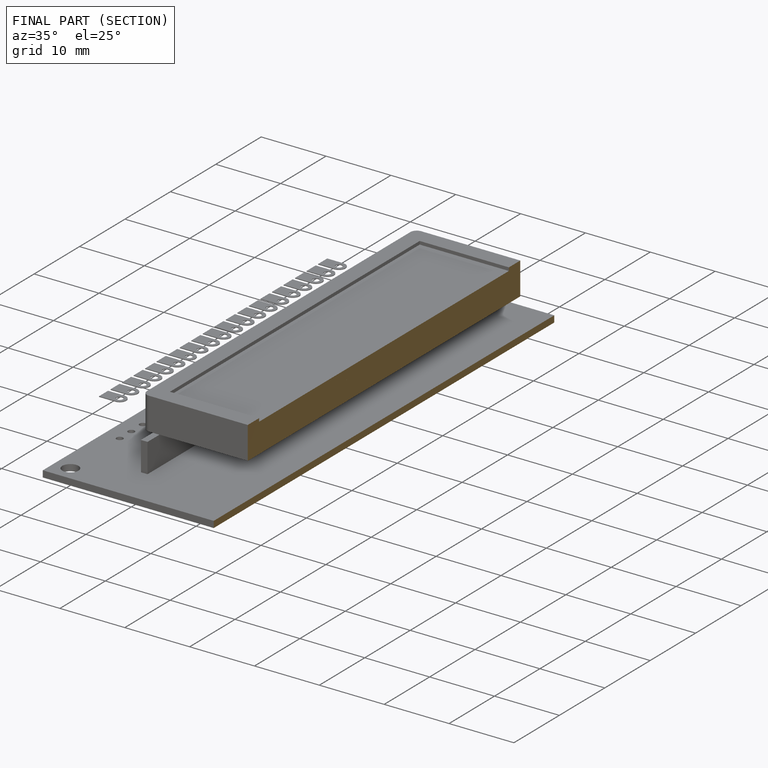
[diagram: finished part — half-section view (interior)]
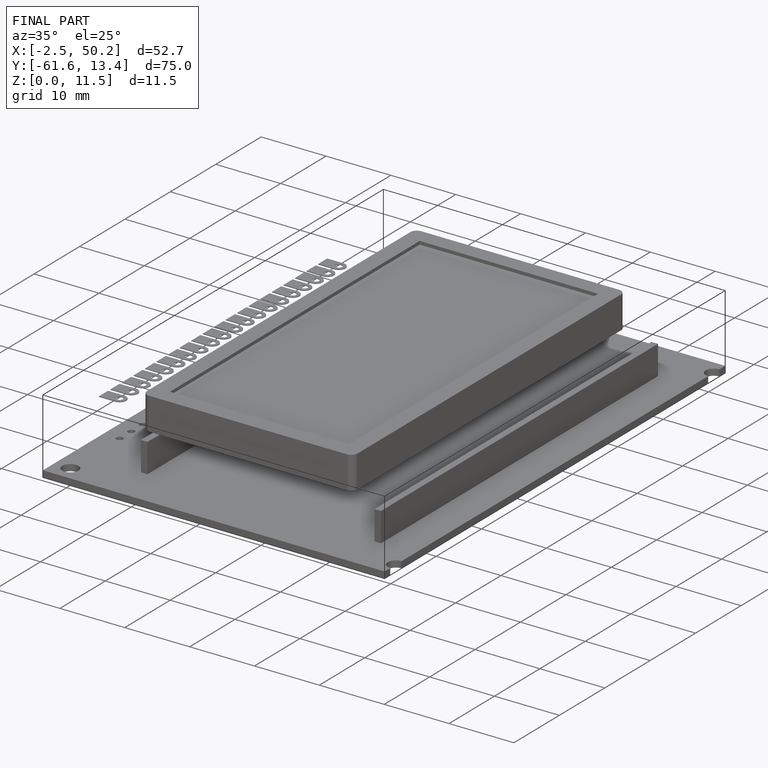
[diagram: finished part — iso view with bounding-box wireframe]
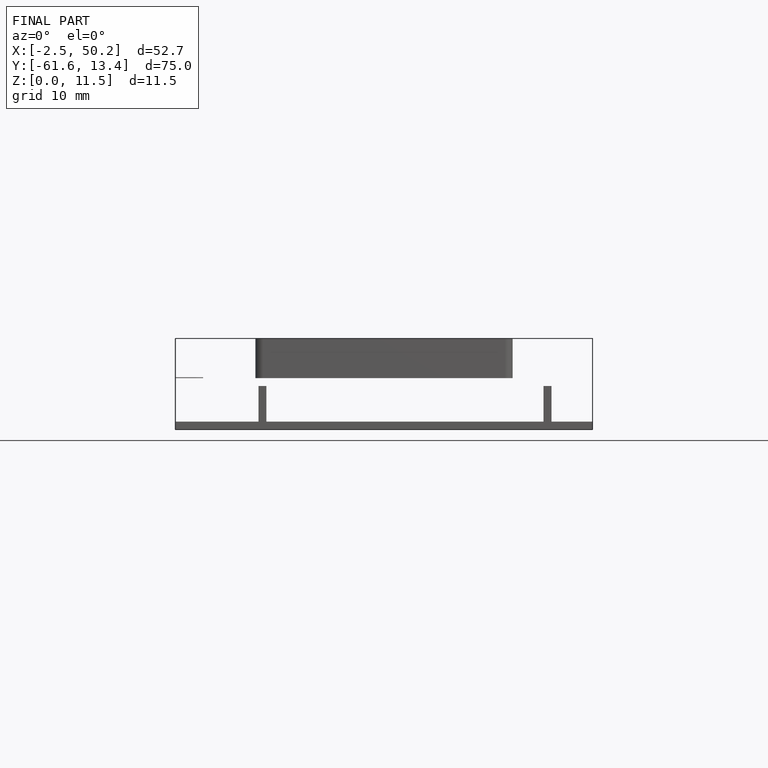
[diagram: finished part — front view with bounding-box wireframe]
